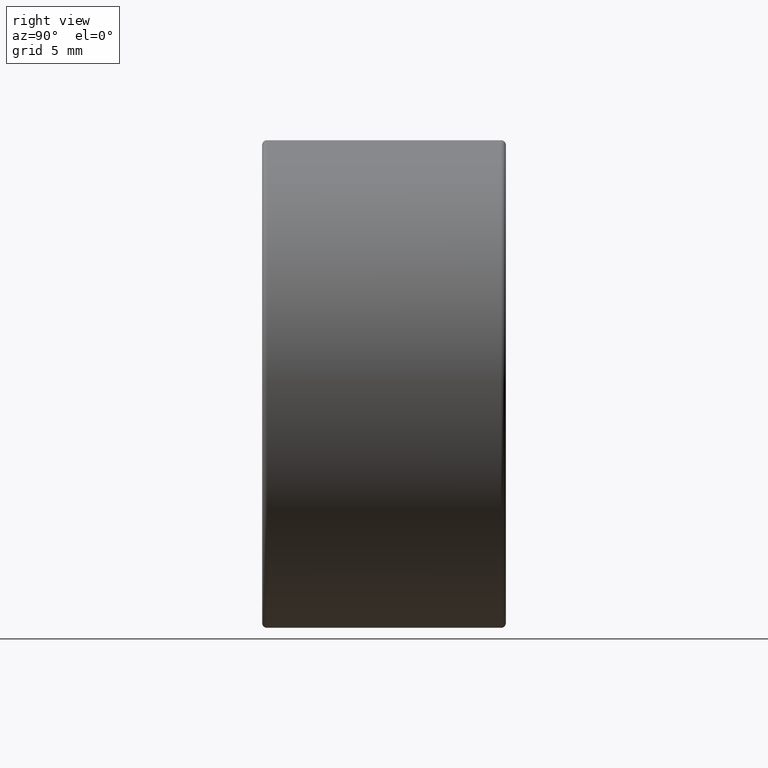
[diagram: clean part render]
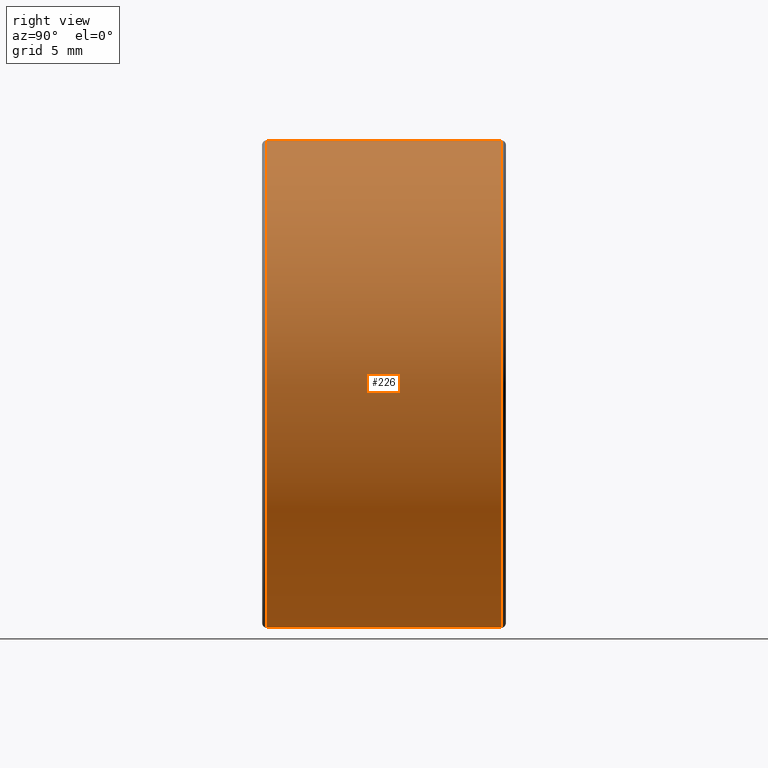
[diagram: same view with one face highlighted and labeled with its STEP entity id]
A machine part, right view. The second image highlights one B-rep face of the part: STEP entity #226.
In plain terms, the highlighted cylindrical surface (partial cylindrical patch) has radius 12.5 mm, axis along (-0, -1, -0).
Its self-contained STEP definition (entity closure, byte-faithful):
#68 = ORIENTED_EDGE ( 'NONE', *, *, #273, .T. ) ;
#71 = EDGE_LOOP ( 'NONE', ( #283, #68, #215, #209 ) ) ;
#84 = LINE ( 'NONE', #458, #439 ) ;
#133 = CARTESIAN_POINT ( 'NONE',  ( -22.50520183104453409, 7.648252184769388506, 62.50000000000000000 ) ) ;
#134 = VECTOR ( 'NONE', #266, 1000.000000000000000 ) ;
#142 = CARTESIAN_POINT ( 'NONE',  ( -22.50520183104453409, 7.398252184769388506, 37.50000000000000711 ) ) ;
#146 = CARTESIAN_POINT ( 'NONE',  ( -22.50520183104453409, 7.398252184769388506, 50.00000000000000000 ) ) ;
#154 = CIRCLE ( 'NONE', #457, 12.49999999999999645 ) ;
#155 = DIRECTION ( 'NONE',  ( 0.0000000000000000000, 0.0000000000000000000, 1.000000000000000000 ) ) ;
#156 = VERTEX_POINT ( 'NONE', #394 ) ;
#176 = CARTESIAN_POINT ( 'NONE',  ( -22.50520183104453409, 7.648252184769388506, 50.00000000000000000 ) ) ;
#186 = CIRCLE ( 'NONE', #395, 12.49999999999999645 ) ;
#201 = CARTESIAN_POINT ( 'NONE',  ( -22.50520183104453409, -4.601747815230612382, 50.00000000000000000 ) ) ;
#209 = ORIENTED_EDGE ( 'NONE', *, *, #367, .F. ) ;
#215 = ORIENTED_EDGE ( 'NONE', *, *, #535, .T. ) ;
#226 = ADVANCED_FACE ( 'NONE', ( #363 ), #312, .T. ) ;
#262 = DIRECTION ( 'NONE',  ( -0.0000000000000000000, -1.000000000000000000, -0.0000000000000000000 ) ) ;
#266 = DIRECTION ( 'NONE',  ( -0.0000000000000000000, -1.000000000000000000, -0.0000000000000000000 ) ) ;
#272 = DIRECTION ( 'NONE',  ( -0.0000000000000000000, -1.000000000000000000, -0.0000000000000000000 ) ) ;
#273 = EDGE_CURVE ( 'NONE', #393, #156, #447, .T. ) ;
#283 = ORIENTED_EDGE ( 'NONE', *, *, #387, .T. ) ;
#312 = CYLINDRICAL_SURFACE ( 'NONE', #346, 12.49999999999999645 ) ;
#323 = DIRECTION ( 'NONE',  ( 0.0000000000000000000, 0.0000000000000000000, 1.000000000000000000 ) ) ;
#328 = DIRECTION ( 'NONE',  ( -0.0000000000000000000, -1.000000000000000000, -0.0000000000000000000 ) ) ;
#330 = CARTESIAN_POINT ( 'NONE',  ( -22.50520183104453409, 7.398252184769388506, 62.50000000000000000 ) ) ;
#337 = VERTEX_POINT ( 'NONE', #574 ) ;
#346 = AXIS2_PLACEMENT_3D ( 'NONE', #176, #262, #451 ) ;
#363 = FACE_OUTER_BOUND ( 'NONE', #71, .T. ) ;
#367 = EDGE_CURVE ( 'NONE', #487, #337, #84, .T. ) ;
#387 = EDGE_CURVE ( 'NONE', #487, #393, #186, .T. ) ;
#393 = VERTEX_POINT ( 'NONE', #330 ) ;
#394 = CARTESIAN_POINT ( 'NONE',  ( -22.50520183104453409, -4.601747815230612382, 62.50000000000000000 ) ) ;
#395 = AXIS2_PLACEMENT_3D ( 'NONE', #146, #328, #323 ) ;
#418 = DIRECTION ( 'NONE',  ( 0.0000000000000000000, 1.000000000000000000, 0.0000000000000000000 ) ) ;
#439 = VECTOR ( 'NONE', #272, 1000.000000000000000 ) ;
#447 = LINE ( 'NONE', #133, #134 ) ;
#451 = DIRECTION ( 'NONE',  ( 0.0000000000000000000, 0.0000000000000000000, -1.000000000000000000 ) ) ;
#457 = AXIS2_PLACEMENT_3D ( 'NONE', #201, #418, #155 ) ;
#458 = CARTESIAN_POINT ( 'NONE',  ( -22.50520183104453409, 7.648252184769388506, 37.50000000000000711 ) ) ;
#487 = VERTEX_POINT ( 'NONE', #142 ) ;
#535 = EDGE_CURVE ( 'NONE', #156, #337, #154, .T. ) ;
#574 = CARTESIAN_POINT ( 'NONE',  ( -22.50520183104453409, -4.601747815230612382, 37.50000000000000711 ) ) ;